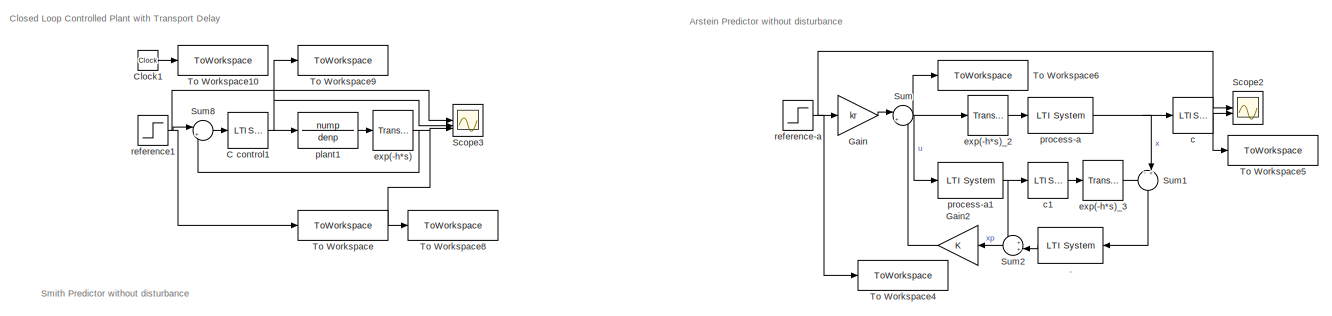
[diagram: root canvas - part 1/3, top center region]
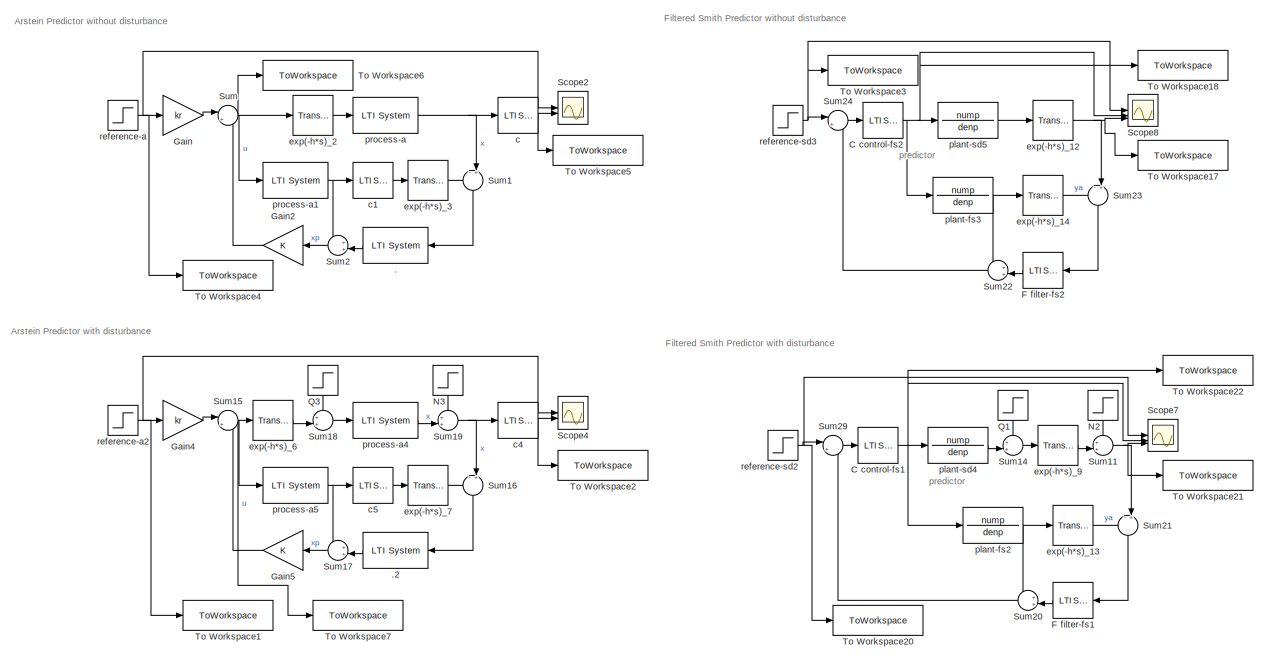
[diagram: root canvas - part 2/3, middle right region]
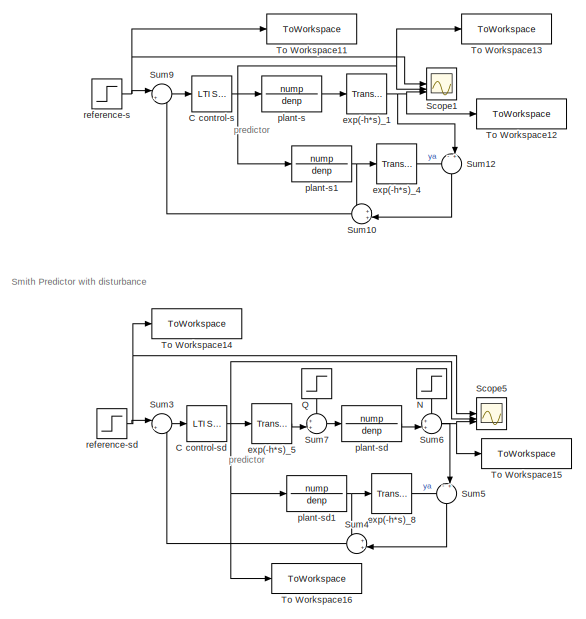
[diagram: root canvas - part 3/3, middle left region]
MODEL slx_39423c5d6941
KIND model
CONFIG AbsTol = auto
CONFIG EnableMultiTasking = off
CONFIG FixedStep = auto
CONFIG MaxStep = auto
CONFIG MinStep = auto
CONFIG RelTol = 1e-3
CONFIG SampleTimeConstraint = Unconstrained
CONFIG SolverName = VariableStepAuto
CONFIG StartTime = 0.0
CONFIG StopTime = 10.0
BLOCK [Reference] .  REF=cstblocks/LTI System
  SourceBlock = cstblocks/LTI System
  SourceType = LTI Block
BLOCK [Reference] .2  REF=cstblocks/LTI System
  SourceBlock = cstblocks/LTI System
  SourceType = LTI Block
BLOCK [Reference] C control-fs1  REF=cstblocks/LTI System
  SourceBlock = cstblocks/LTI System
  SourceType = LTI Block
BLOCK [Reference] C control-fs2  REF=cstblocks/LTI System
  SourceBlock = cstblocks/LTI System
  SourceType = LTI Block
BLOCK [Reference] C control-s  REF=cstblocks/LTI System
  SourceBlock = cstblocks/LTI System
  SourceType = LTI Block
BLOCK [Reference] C control-sd  REF=cstblocks/LTI System
  SourceBlock = cstblocks/LTI System
  SourceType = LTI Block
BLOCK [Reference] C control1  REF=cstblocks/LTI System
  SourceBlock = cstblocks/LTI System
  SourceType = LTI Block
BLOCK [Clock] Clock1
BLOCK [Reference] F filter-fs1  REF=cstblocks/LTI System
  NameLocation = top
  SourceBlock = cstblocks/LTI System
  SourceType = LTI Block
BLOCK [Reference] F filter-fs2  REF=cstblocks/LTI System
  NameLocation = top
  SourceBlock = cstblocks/LTI System
  SourceType = LTI Block
BLOCK [Gain] Gain
  Gain = kr
BLOCK [Gain] Gain2
  Gain = K
  NameLocation = top
BLOCK [Gain] Gain4
  Gain = kr
BLOCK [Gain] Gain5
  Gain = K
  NameLocation = top
BLOCK [Step] N
  After = 0.2
  NameLocation = left
  SampleTime = 0
  Time = 20
BLOCK [Step] N2
  After = 0.2
  NameLocation = left
  SampleTime = 0
  Time = 20
BLOCK [Step] N3
  After = 0.2
  NameLocation = left
  SampleTime = 0
  Time = 20
BLOCK [Step] Q
  After = 0.2
  NameLocation = left
  SampleTime = 0
  Time = 10
BLOCK [Step] Q1
  After = 0.2
  NameLocation = right
  SampleTime = 0
  Time = 10
BLOCK [Step] Q3
  After = 0.2
  NameLocation = left
  SampleTime = 0
  Time = 10
BLOCK [Scope] Scope1
  Floating = off
  NumInputPorts = 3
  ScopeSpecificationString = Simulink.scopes.TimeScopeBlockCfg('CurrentConfiguration', extmgr.ConfigurationSet(extmgr.Configuration('Core','General UI',true,'FigureColor',[1 1 1]),extmgr.Configuration('Core','Source UI',true),extmgr.Configuration('Sources','WiredSimulink',true,'DataLoggingVariableName','ScopeData2'),extmgr.Configuration('Visuals','Time Domain',true,'SerializedDisplays',{struct('MinYLimReal','-0.667','MaxYLimR...<+1869ch>
BLOCK [Scope] Scope2
  Floating = off
  NumInputPorts = 2
  ScopeSpecificationString = Simulink.scopes.TimeScopeBlockCfg('CurrentConfiguration', extmgr.ConfigurationSet(extmgr.Configuration('Core','General UI',true,'FigureColor',[1 1 1]),extmgr.Configuration('Core','Source UI',true),extmgr.Configuration('Sources','WiredSimulink',true,'DataLoggingVariableName','ScopeData1'),extmgr.Configuration('Visuals','Time Domain',true,'SerializedDisplays',{struct('MinYLimReal','-0.19543','MaxYLi...<+1851ch>
BLOCK [Scope] Scope3
  Floating = off
  NumInputPorts = 3
  ScopeSpecificationString = Simulink.scopes.TimeScopeBlockCfg('CurrentConfiguration', extmgr.ConfigurationSet(extmgr.Configuration('Core','General UI',true,'FigureColor',[1 1 1]),extmgr.Configuration('Core','Source UI',true),extmgr.Configuration('Sources','WiredSimulink',true,'DataLoggingVariableName','ScopeData3'),extmgr.Configuration('Visuals','Time Domain',true,'SerializedDisplays',{struct('MinYLimReal','-147285.02662','M...<+1913ch>
BLOCK [Scope] Scope4
  Floating = off
  NumInputPorts = 2
  ScopeSpecificationString = Simulink.scopes.TimeScopeBlockCfg('CurrentConfiguration', extmgr.ConfigurationSet(extmgr.Configuration('Core','General UI',true,'FigureColor',[1 1 1]),extmgr.Configuration('Core','Source UI',true),extmgr.Configuration('Sources','WiredSimulink',true),extmgr.Configuration('Visuals','Time Domain',true,'SerializedDisplays',{struct('MinYLimReal','-0.19543','MaxYLimReal','1.75883','YLabelReal','','MinYL...<+1812ch>
BLOCK [Scope] Scope5
  Floating = off
  NumInputPorts = 3
  ScopeSpecificationString = Simulink.scopes.TimeScopeBlockCfg('CurrentConfiguration', extmgr.ConfigurationSet(extmgr.Configuration('Core','General UI',true,'FigureColor',[1 1 1]),extmgr.Configuration('Core','Source UI',true),extmgr.Configuration('Sources','WiredSimulink',true,'DataLoggingVariableName','ScopeData4'),extmgr.Configuration('Visuals','Time Domain',true,'SerializedDisplays',{struct('MinYLimReal','-0.667','MaxYLimR...<+1864ch>
BLOCK [Scope] Scope7
  Floating = off
  NumInputPorts = 3
  ScopeSpecificationString = Simulink.scopes.TimeScopeBlockCfg('CurrentConfiguration', extmgr.ConfigurationSet(extmgr.Configuration('Core','General UI',true,'FigureColor',[1 1 1]),extmgr.Configuration('Core','Source UI',true),extmgr.Configuration('Sources','WiredSimulink',true,'DataLoggingVariableName','ScopeData6'),extmgr.Configuration('Visuals','Time Domain',true,'SerializedDisplays',{struct('MinYLimReal','-0.667','MaxYLimR...<+1867ch>
BLOCK [Scope] Scope8
  Floating = off
  NumInputPorts = 3
  ScopeSpecificationString = Simulink.scopes.TimeScopeBlockCfg('CurrentConfiguration', extmgr.ConfigurationSet(extmgr.Configuration('Core','General UI',true,'FigureColor',[1 1 1]),extmgr.Configuration('Core','Source UI',true),extmgr.Configuration('Sources','WiredSimulink',true,'DataLoggingVariableName','ScopeData7'),extmgr.Configuration('Visuals','Time Domain',true,'SerializedDisplays',{struct('MinYLimReal','-0.667','MaxYLimR...<+1873ch>
BLOCK [Sum] Sum
  Inputs = |+-
BLOCK [Sum] Sum1
  Inputs = -+|
  NameLocation = left
BLOCK [Sum] Sum10
  Inputs = ++|
  NameLocation = top
BLOCK [Sum] Sum11
  Inputs = ++|
BLOCK [Sum] Sum12
  Inputs = -+|
  NameLocation = left
BLOCK [Sum] Sum14
  Inputs = ++|
BLOCK [Sum] Sum15
  Inputs = |+-
BLOCK [Sum] Sum16
  Inputs = -+|
  NameLocation = left
BLOCK [Sum] Sum17
  Inputs = ++|
  NameLocation = top
BLOCK [Sum] Sum18
  Inputs = ++|
BLOCK [Sum] Sum19
  Inputs = ++|
BLOCK [Sum] Sum2
  Inputs = ++|
  NameLocation = top
BLOCK [Sum] Sum20
  Inputs = ++|
  NameLocation = top
BLOCK [Sum] Sum21
  Inputs = -+|
  NameLocation = left
BLOCK [Sum] Sum22
  Inputs = ++|
  NameLocation = top
BLOCK [Sum] Sum23
  Inputs = -+|
  NameLocation = left
BLOCK [Sum] Sum24
  Inputs = |+-
BLOCK [Sum] Sum29
  Inputs = |+-
BLOCK [Sum] Sum3
  Inputs = |+-
BLOCK [Sum] Sum4
  Inputs = ++|
  NameLocation = top
BLOCK [Sum] Sum5
  Inputs = -+|
  NameLocation = left
BLOCK [Sum] Sum6
  Inputs = ++|
BLOCK [Sum] Sum7
  Inputs = ++|
BLOCK [Sum] Sum8
  Inputs = |+-
BLOCK [Sum] Sum9
  Inputs = |+-
BLOCK [ToWorkspace] To Workspace
  FixptAsFi = on
  MaxDataPoints = inf
  SampleTime = -1
  VariableName = cl_dp_u
BLOCK [ToWorkspace] To Workspace1
  FixptAsFi = on
  MaxDataPoints = inf
  SampleTime = -1
  VariableName = ap_u1
BLOCK [ToWorkspace] To Workspace10
  FixptAsFi = on
  MaxDataPoints = inf
  SampleTime = -1
  VariableName = cl_dp_time
BLOCK [ToWorkspace] To Workspace11
  FixptAsFi = on
  MaxDataPoints = inf
  SampleTime = -1
  VariableName = sp_u
BLOCK [ToWorkspace] To Workspace12
  FixptAsFi = on
  MaxDataPoints = inf
  SampleTime = -1
  VariableName = sp_y
BLOCK [ToWorkspace] To Workspace13
  FixptAsFi = on
  MaxDataPoints = inf
  SampleTime = -1
  VariableName = sp_c
BLOCK [ToWorkspace] To Workspace14
  FixptAsFi = on
  MaxDataPoints = inf
  SampleTime = -1
  VariableName = sp_u1
BLOCK [ToWorkspace] To Workspace15
  FixptAsFi = on
  MaxDataPoints = inf
  SampleTime = -1
  VariableName = sp_y1
BLOCK [ToWorkspace] To Workspace16
  FixptAsFi = on
  MaxDataPoints = inf
  SampleTime = -1
  VariableName = sp_c1
BLOCK [ToWorkspace] To Workspace17
  FixptAsFi = on
  MaxDataPoints = inf
  SampleTime = -1
  VariableName = fsp_y
BLOCK [ToWorkspace] To Workspace18
  FixptAsFi = on
  MaxDataPoints = inf
  SampleTime = -1
  VariableName = fsp_c
BLOCK [ToWorkspace] To Workspace2
  FixptAsFi = on
  MaxDataPoints = inf
  SampleTime = -1
  VariableName = ap_y1
BLOCK [ToWorkspace] To Workspace20
  FixptAsFi = on
  MaxDataPoints = inf
  SampleTime = -1
  VariableName = fsp_u1
BLOCK [ToWorkspace] To Workspace21
  FixptAsFi = on
  MaxDataPoints = inf
  SampleTime = -1
  VariableName = fsp_y1
BLOCK [ToWorkspace] To Workspace22
  FixptAsFi = on
  MaxDataPoints = inf
  SampleTime = -1
  VariableName = fsp_c1
BLOCK [ToWorkspace] To Workspace3
  FixptAsFi = on
  MaxDataPoints = inf
  SampleTime = -1
  VariableName = fsp_u
BLOCK [ToWorkspace] To Workspace4
  FixptAsFi = on
  MaxDataPoints = inf
  SampleTime = -1
  VariableName = ap_u
BLOCK [ToWorkspace] To Workspace5
  FixptAsFi = on
  MaxDataPoints = inf
  SampleTime = -1
  VariableName = ap_y
BLOCK [ToWorkspace] To Workspace6
  FixptAsFi = on
  MaxDataPoints = inf
  SampleTime = -1
  VariableName = ap_c
BLOCK [ToWorkspace] To Workspace7
  FixptAsFi = on
  MaxDataPoints = inf
  SampleTime = -1
  VariableName = ap_c1
BLOCK [ToWorkspace] To Workspace8
  FixptAsFi = on
  MaxDataPoints = inf
  SampleTime = -1
  VariableName = cl_dp_y
BLOCK [ToWorkspace] To Workspace9
  FixptAsFi = on
  MaxDataPoints = inf
  SampleTime = -1
  VariableName = cl_dp_c
BLOCK [Reference] c  REF=cstblocks/LTI System
  SourceBlock = cstblocks/LTI System
  SourceType = LTI Block
BLOCK [Reference] c1  REF=cstblocks/LTI System
  SourceBlock = cstblocks/LTI System
  SourceType = LTI Block
BLOCK [Reference] c4  REF=cstblocks/LTI System
  SourceBlock = cstblocks/LTI System
  SourceType = LTI Block
BLOCK [Reference] c5  REF=cstblocks/LTI System
  SourceBlock = cstblocks/LTI System
  SourceType = LTI Block
BLOCK [TransportDelay] exp(-h*s)
BLOCK [TransportDelay] exp(-h*s)_1
  DelayTime = h
BLOCK [TransportDelay] exp(-h*s)_12
  DelayTime = h
BLOCK [TransportDelay] exp(-h*s)_13
  DelayTime = h
BLOCK [TransportDelay] exp(-h*s)_14
  DelayTime = h
BLOCK [TransportDelay] exp(-h*s)_2
  DelayTime = h
BLOCK [TransportDelay] exp(-h*s)_3
  DelayTime = h
BLOCK [TransportDelay] exp(-h*s)_4
  DelayTime = h
BLOCK [TransportDelay] exp(-h*s)_5
  DelayTime = h
BLOCK [TransportDelay] exp(-h*s)_6
  DelayTime = h
BLOCK [TransportDelay] exp(-h*s)_7
  DelayTime = h
BLOCK [TransportDelay] exp(-h*s)_8
  DelayTime = h
BLOCK [TransportDelay] exp(-h*s)_9
  DelayTime = h
BLOCK [TransferFcn] plant-fs2
  Denominator = denp
  Numerator = nump
BLOCK [TransferFcn] plant-fs3
  Denominator = denp
  Numerator = nump
BLOCK [TransferFcn] plant-s
  Denominator = denp
  Numerator = nump
BLOCK [TransferFcn] plant-s1
  Denominator = denp
  Numerator = nump
BLOCK [TransferFcn] plant-sd
  Denominator = denp
  Numerator = nump
BLOCK [TransferFcn] plant-sd1
  Denominator = denp
  Numerator = nump
BLOCK [TransferFcn] plant-sd4
  Denominator = denp
  Numerator = nump
BLOCK [TransferFcn] plant-sd5
  Denominator = denp
  Numerator = nump
BLOCK [TransferFcn] plant1
  Denominator = denp
  Numerator = nump
BLOCK [Reference] process-a  REF=cstblocks/LTI System
  SourceBlock = cstblocks/LTI System
  SourceType = LTI Block
BLOCK [Reference] process-a1  REF=cstblocks/LTI System
  SourceBlock = cstblocks/LTI System
  SourceType = LTI Block
BLOCK [Reference] process-a4  REF=cstblocks/LTI System
  SourceBlock = cstblocks/LTI System
  SourceType = LTI Block
BLOCK [Reference] process-a5  REF=cstblocks/LTI System
  SourceBlock = cstblocks/LTI System
  SourceType = LTI Block
BLOCK [Step] reference-a
  SampleTime = 0
  Time = 0
BLOCK [Step] reference-a2
  SampleTime = 0
  Time = 0
BLOCK [Step] reference-s
  SampleTime = 0
  Time = 0
BLOCK [Step] reference-sd
  SampleTime = 0
  Time = 0
BLOCK [Step] reference-sd2
  SampleTime = 0
  Time = 0
BLOCK [Step] reference-sd3
  SampleTime = 0
  Time = 0
BLOCK [Step] reference1
  SampleTime = 0
  Time = 0
ANNOTATION (root): Arstein Predictor with disturbance
ANNOTATION (root): Arstein Predictor without disturbance
ANNOTATION (root): Closed Loop Controlled Plant with Transport Delay
ANNOTATION (root): Filtered Smith Predictor with disturbance
ANNOTATION (root): Filtered Smith Predictor without disturbance
ANNOTATION (root): Smith Predictor with disturbance
ANNOTATION (root): Smith Predictor without disturbance
ANNOTATION (root): predictor
LINE .2:1 -> Sum17:2
LINE .:1 -> Sum2:2
NET C control-fs1:1 -> Scope7:2, To Workspace22:1, plant-fs2:1, plant-sd4:1
NET C control-fs2:1 -> Scope8:2, To Workspace18:1, plant-fs3:1, plant-sd5:1
NET C control-s:1 -> Scope1:2, To Workspace13:1, plant-s1:1, plant-s:1
NET C control-sd:1 -> Scope5:2, To Workspace16:1, exp(-h*s)_5:1, plant-sd1:1
NET C control1:1 -> Scope3:2, To Workspace9:1, plant1:1
LINE Clock1:1 -> To Workspace10:1
LINE F filter-fs1:1 -> Sum20:2
LINE F filter-fs2:1 -> Sum22:2
LINE Gain2:1 -> Sum:2
LINE Gain4:1 -> Sum15:1
LINE Gain5:1 -> Sum15:2
LINE Gain:1 -> Sum:1
LINE N2:1 -> Sum11:1
LINE N3:1 -> Sum19:1
LINE N:1 -> Sum6:1
LINE Q1:1 -> Sum14:1
LINE Q3:1 -> Sum18:1
LINE Q:1 -> Sum7:1
LINE Sum10:1 -> Sum9:2
NET Sum11:1 -> Scope7:3, Sum21:2, To Workspace21:1
LINE Sum12:1 -> Sum10:2
LINE Sum14:1 -> exp(-h*s)_9:1
NET Sum15:1 -> To Workspace7:1, exp(-h*s)_6:1, process-a5:1
LINE Sum16:1 -> .2:1
LINE Sum17:1 -> Gain5:1
LINE Sum18:1 -> process-a4:1
NET Sum19:1 -> Sum16:2, c4:1
LINE Sum1:1 -> .:1
LINE Sum20:1 -> Sum29:2
LINE Sum21:1 -> F filter-fs1:1
LINE Sum22:1 -> Sum24:2
LINE Sum23:1 -> F filter-fs2:1
LINE Sum24:1 -> C control-fs2:1
LINE Sum29:1 -> C control-fs1:1
LINE Sum2:1 -> Gain2:1
LINE Sum3:1 -> C control-sd:1
LINE Sum4:1 -> Sum3:2
LINE Sum5:1 -> Sum4:2
NET Sum6:1 -> Scope5:3, Sum5:2, To Workspace15:1
LINE Sum7:1 -> plant-sd:1
LINE Sum8:1 -> C control1:1
LINE Sum9:1 -> C control-s:1
NET Sum:1 -> To Workspace6:1, exp(-h*s)_2:1, process-a1:1
LINE c1:1 -> exp(-h*s)_3:1
NET c4:1 -> Scope4:2, To Workspace2:1
LINE c5:1 -> exp(-h*s)_7:1
NET c:1 -> Scope2:2, To Workspace5:1
NET exp(-h*s):1 -> Scope3:3, Sum8:2, To Workspace8:1
NET exp(-h*s)_12:1 -> Scope8:3, Sum23:2, To Workspace17:1
LINE exp(-h*s)_13:1 -> Sum21:1
LINE exp(-h*s)_14:1 -> Sum23:1
NET exp(-h*s)_1:1 -> Scope1:3, Sum12:2, To Workspace12:1
LINE exp(-h*s)_2:1 -> process-a:1
LINE exp(-h*s)_3:1 -> Sum1:1
LINE exp(-h*s)_4:1 -> Sum12:1
LINE exp(-h*s)_5:1 -> Sum7:2
LINE exp(-h*s)_6:1 -> Sum18:2
LINE exp(-h*s)_7:1 -> Sum16:1
LINE exp(-h*s)_8:1 -> Sum5:1
LINE exp(-h*s)_9:1 -> Sum11:2
NET plant-fs2:1 -> Sum20:1, exp(-h*s)_13:1
NET plant-fs3:1 -> Sum22:1, exp(-h*s)_14:1
NET plant-s1:1 -> Sum10:1, exp(-h*s)_4:1
LINE plant-s:1 -> exp(-h*s)_1:1
NET plant-sd1:1 -> Sum4:1, exp(-h*s)_8:1
LINE plant-sd4:1 -> Sum14:2
LINE plant-sd5:1 -> exp(-h*s)_12:1
LINE plant-sd:1 -> Sum6:2
LINE plant1:1 -> exp(-h*s):1
NET process-a1:1 -> Sum2:1, c1:1
LINE process-a4:1 -> Sum19:2
NET process-a5:1 -> Sum17:1, c5:1
NET process-a:1 -> Sum1:2, c:1
NET reference-a2:1 -> Gain4:1, Scope4:1, To Workspace1:1
NET reference-a:1 -> Gain:1, Scope2:1, To Workspace4:1
NET reference-s:1 -> Scope1:1, Sum9:1, To Workspace11:1
NET reference-sd2:1 -> Scope7:1, Sum29:1, To Workspace20:1
NET reference-sd3:1 -> Scope8:1, Sum24:1, To Workspace3:1
NET reference-sd:1 -> Scope5:1, Sum3:1, To Workspace14:1
NET reference1:1 -> Scope3:1, Sum8:1, To Workspace:1
note: NET lines group one-source signal fan-out (src -> all destinations, sorted); 1:1 wires keep LINE
